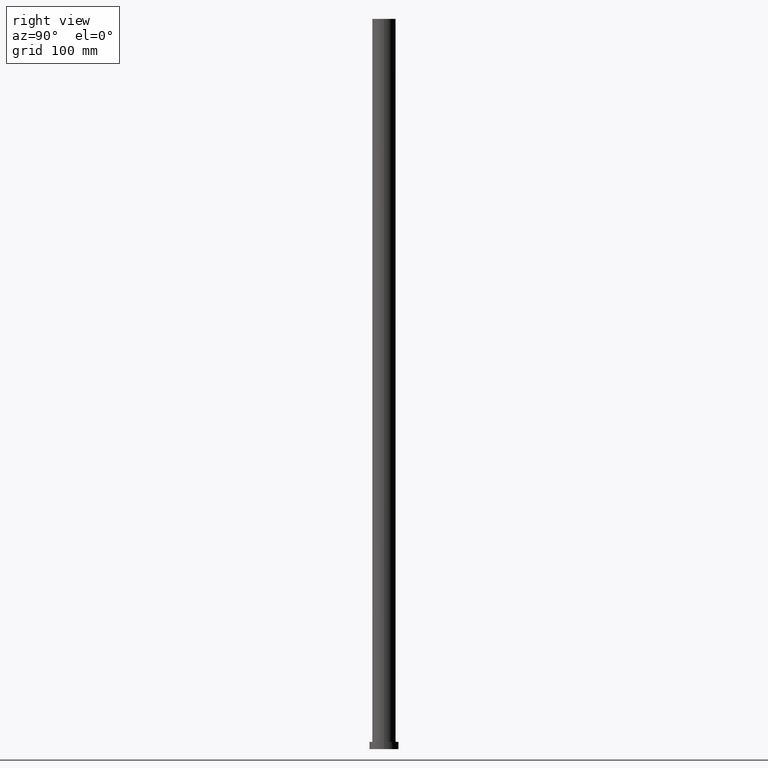
[diagram: clean part render]
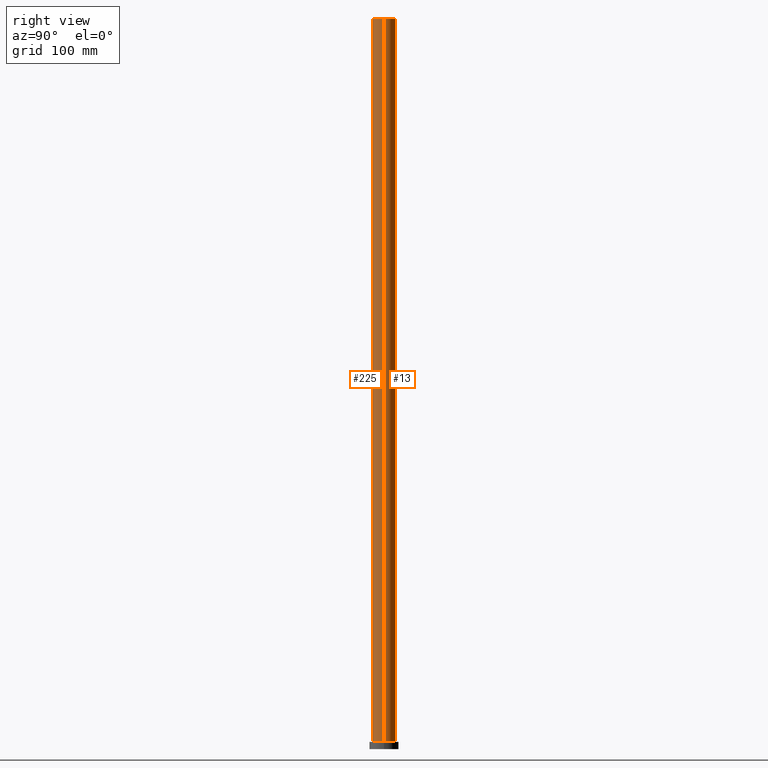
[diagram: same view with one multi-face feature highlighted, each face labeled with its STEP entity id]
A machine part, right view. The highlighted faces form ONE feature: a constant-radius fillet chain: 2 tangent blend faces with common blend radius 16 mm. The faces share edges in the B-rep.
Their STEP definitions:
[1] entity #225 (Cylinder):
#7 = CARTESIAN_POINT ( 'NONE',  ( -16.00000000000000000, 0.000000000000000000, 1000.000000000000000 ) ) ;
#9 = VERTEX_POINT ( 'NONE', #192 ) ;
#12 = CIRCLE ( 'NONE', #24, 16.00000000000000000 ) ;
#14 = ORIENTED_EDGE ( 'NONE', *, *, #36, .T. ) ;
#23 = ORIENTED_EDGE ( 'NONE', *, *, #56, .T. ) ;
#24 = AXIS2_PLACEMENT_3D ( 'NONE', #149, #215, #162 ) ;
#36 = EDGE_CURVE ( 'NONE', #58, #53, #74, .T. ) ;
#40 = AXIS2_PLACEMENT_3D ( 'NONE', #197, #120, #195 ) ;
#44 = VECTOR ( 'NONE', #188, 1000.000000000000000 ) ;
#50 = DIRECTION ( 'NONE',  ( -1.000000000000000000, 0.000000000000000000, 0.000000000000000000 ) ) ;
#53 = VERTEX_POINT ( 'NONE', #240 ) ;
#56 = EDGE_CURVE ( 'NONE', #9, #58, #155, .T. ) ;
#58 = VERTEX_POINT ( 'NONE', #59 ) ;
#59 = CARTESIAN_POINT ( 'NONE',  ( -16.00000000000000000, 0.000000000000000000, 10.00000000000000000 ) ) ;
#63 = EDGE_CURVE ( 'NONE', #9, #76, #12, .T. ) ;
#72 = FACE_OUTER_BOUND ( 'NONE', #99, .T. ) ;
#74 = CIRCLE ( 'NONE', #40, 16.00000000000000000 ) ;
#76 = VERTEX_POINT ( 'NONE', #94 ) ;
#90 = DIRECTION ( 'NONE',  ( -0.000000000000000000, -0.000000000000000000, -1.000000000000000000 ) ) ;
#94 = CARTESIAN_POINT ( 'NONE',  ( 16.00000000000000000, 1.959434878635765131E-15, 1000.000000000000000 ) ) ;
#99 = EDGE_LOOP ( 'NONE', ( #213, #254, #23, #14 ) ) ;
#119 = EDGE_CURVE ( 'NONE', #76, #53, #177, .T. ) ;
#120 = DIRECTION ( 'NONE',  ( 0.000000000000000000, 0.000000000000000000, 1.000000000000000000 ) ) ;
#135 = VECTOR ( 'NONE', #90, 1000.000000000000000 ) ;
#136 = CARTESIAN_POINT ( 'NONE',  ( 16.00000000000000000, 1.959434878635765131E-15, 1000.000000000000000 ) ) ;
#149 = CARTESIAN_POINT ( 'NONE',  ( 0.000000000000000000, 0.000000000000000000, 1000.000000000000000 ) ) ;
#155 = LINE ( 'NONE', #7, #135 ) ;
#162 = DIRECTION ( 'NONE',  ( 1.000000000000000000, 0.000000000000000000, 0.000000000000000000 ) ) ;
#177 = LINE ( 'NONE', #136, #44 ) ;
#188 = DIRECTION ( 'NONE',  ( -0.000000000000000000, -0.000000000000000000, -1.000000000000000000 ) ) ;
#192 = CARTESIAN_POINT ( 'NONE',  ( -16.00000000000000000, 0.000000000000000000, 1000.000000000000000 ) ) ;
#195 = DIRECTION ( 'NONE',  ( 1.000000000000000000, 0.000000000000000000, 0.000000000000000000 ) ) ;
#197 = CARTESIAN_POINT ( 'NONE',  ( 0.000000000000000000, 0.000000000000000000, 10.00000000000000000 ) ) ;
#207 = DIRECTION ( 'NONE',  ( -0.000000000000000000, -0.000000000000000000, -1.000000000000000000 ) ) ;
#213 = ORIENTED_EDGE ( 'NONE', *, *, #119, .F. ) ;
#215 = DIRECTION ( 'NONE',  ( 0.000000000000000000, 0.000000000000000000, 1.000000000000000000 ) ) ;
#221 = AXIS2_PLACEMENT_3D ( 'NONE', #242, #207, #50 ) ;
#225 = ADVANCED_FACE ( 'NONE', ( #72 ), #244, .T. ) ;
#240 = CARTESIAN_POINT ( 'NONE',  ( 16.00000000000000000, 1.959434878635765131E-15, 10.00000000000000000 ) ) ;
#242 = CARTESIAN_POINT ( 'NONE',  ( 0.000000000000000000, 0.000000000000000000, 1000.000000000000000 ) ) ;
#244 = CYLINDRICAL_SURFACE ( 'NONE', #221, 16.00000000000000000 ) ;
#254 = ORIENTED_EDGE ( 'NONE', *, *, #63, .F. ) ;
[2] entity #13 (Cylinder):
#6 = DIRECTION ( 'NONE',  ( 1.000000000000000000, 0.000000000000000000, 0.000000000000000000 ) ) ;
#7 = CARTESIAN_POINT ( 'NONE',  ( -16.00000000000000000, 0.000000000000000000, 1000.000000000000000 ) ) ;
#8 = CARTESIAN_POINT ( 'NONE',  ( 0.000000000000000000, 0.000000000000000000, 10.00000000000000000 ) ) ;
#9 = VERTEX_POINT ( 'NONE', #192 ) ;
#13 = ADVANCED_FACE ( 'NONE', ( #158 ), #35, .T. ) ;
#20 = CIRCLE ( 'NONE', #102, 16.00000000000000000 ) ;
#32 = CARTESIAN_POINT ( 'NONE',  ( 0.000000000000000000, 0.000000000000000000, 1000.000000000000000 ) ) ;
#35 = CYLINDRICAL_SURFACE ( 'NONE', #129, 16.00000000000000000 ) ;
#39 = ORIENTED_EDGE ( 'NONE', *, *, #81, .T. ) ;
#44 = VECTOR ( 'NONE', #188, 1000.000000000000000 ) ;
#53 = VERTEX_POINT ( 'NONE', #240 ) ;
#55 = DIRECTION ( 'NONE',  ( -0.000000000000000000, -0.000000000000000000, -1.000000000000000000 ) ) ;
#56 = EDGE_CURVE ( 'NONE', #9, #58, #155, .T. ) ;
#58 = VERTEX_POINT ( 'NONE', #59 ) ;
#59 = CARTESIAN_POINT ( 'NONE',  ( -16.00000000000000000, 0.000000000000000000, 10.00000000000000000 ) ) ;
#71 = DIRECTION ( 'NONE',  ( 0.000000000000000000, 0.000000000000000000, 1.000000000000000000 ) ) ;
#76 = VERTEX_POINT ( 'NONE', #94 ) ;
#78 = AXIS2_PLACEMENT_3D ( 'NONE', #32, #174, #226 ) ;
#81 = EDGE_CURVE ( 'NONE', #53, #58, #20, .T. ) ;
#86 = CIRCLE ( 'NONE', #78, 16.00000000000000000 ) ;
#90 = DIRECTION ( 'NONE',  ( -0.000000000000000000, -0.000000000000000000, -1.000000000000000000 ) ) ;
#94 = CARTESIAN_POINT ( 'NONE',  ( 16.00000000000000000, 1.959434878635765131E-15, 1000.000000000000000 ) ) ;
#102 = AXIS2_PLACEMENT_3D ( 'NONE', #8, #71, #6 ) ;
#119 = EDGE_CURVE ( 'NONE', #76, #53, #177, .T. ) ;
#129 = AXIS2_PLACEMENT_3D ( 'NONE', #228, #55, #233 ) ;
#135 = VECTOR ( 'NONE', #90, 1000.000000000000000 ) ;
#136 = CARTESIAN_POINT ( 'NONE',  ( 16.00000000000000000, 1.959434878635765131E-15, 1000.000000000000000 ) ) ;
#155 = LINE ( 'NONE', #7, #135 ) ;
#158 = FACE_OUTER_BOUND ( 'NONE', #248, .T. ) ;
#165 = ORIENTED_EDGE ( 'NONE', *, *, #203, .F. ) ;
#174 = DIRECTION ( 'NONE',  ( 0.000000000000000000, 0.000000000000000000, 1.000000000000000000 ) ) ;
#177 = LINE ( 'NONE', #136, #44 ) ;
#188 = DIRECTION ( 'NONE',  ( -0.000000000000000000, -0.000000000000000000, -1.000000000000000000 ) ) ;
#192 = CARTESIAN_POINT ( 'NONE',  ( -16.00000000000000000, 0.000000000000000000, 1000.000000000000000 ) ) ;
#203 = EDGE_CURVE ( 'NONE', #76, #9, #86, .T. ) ;
#212 = ORIENTED_EDGE ( 'NONE', *, *, #119, .T. ) ;
#226 = DIRECTION ( 'NONE',  ( 1.000000000000000000, 0.000000000000000000, 0.000000000000000000 ) ) ;
#228 = CARTESIAN_POINT ( 'NONE',  ( 0.000000000000000000, 0.000000000000000000, 1000.000000000000000 ) ) ;
#233 = DIRECTION ( 'NONE',  ( -1.000000000000000000, 0.000000000000000000, 0.000000000000000000 ) ) ;
#240 = CARTESIAN_POINT ( 'NONE',  ( 16.00000000000000000, 1.959434878635765131E-15, 10.00000000000000000 ) ) ;
#246 = ORIENTED_EDGE ( 'NONE', *, *, #56, .F. ) ;
#248 = EDGE_LOOP ( 'NONE', ( #165, #212, #39, #246 ) ) ;